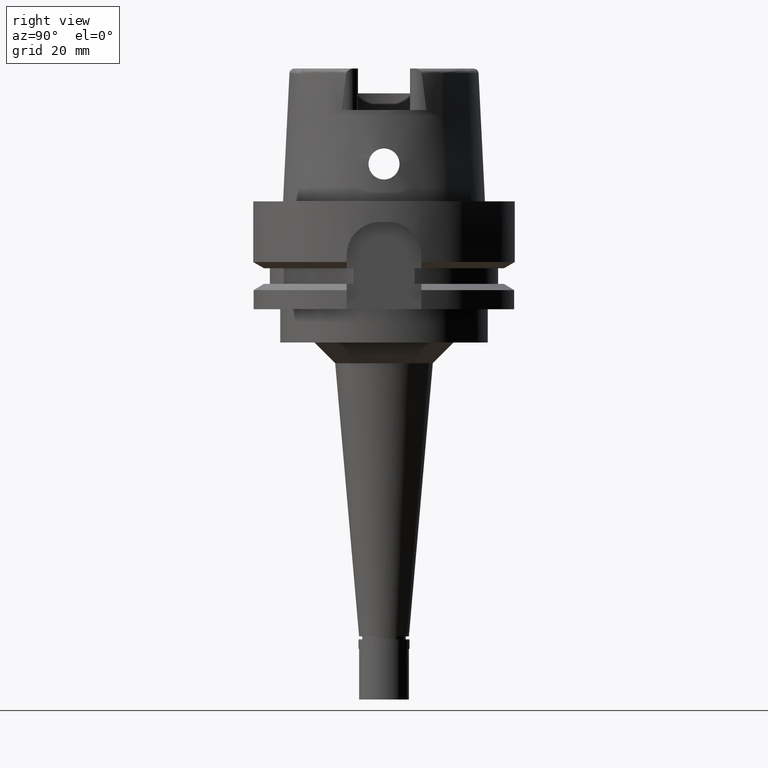
[diagram: clean part render]
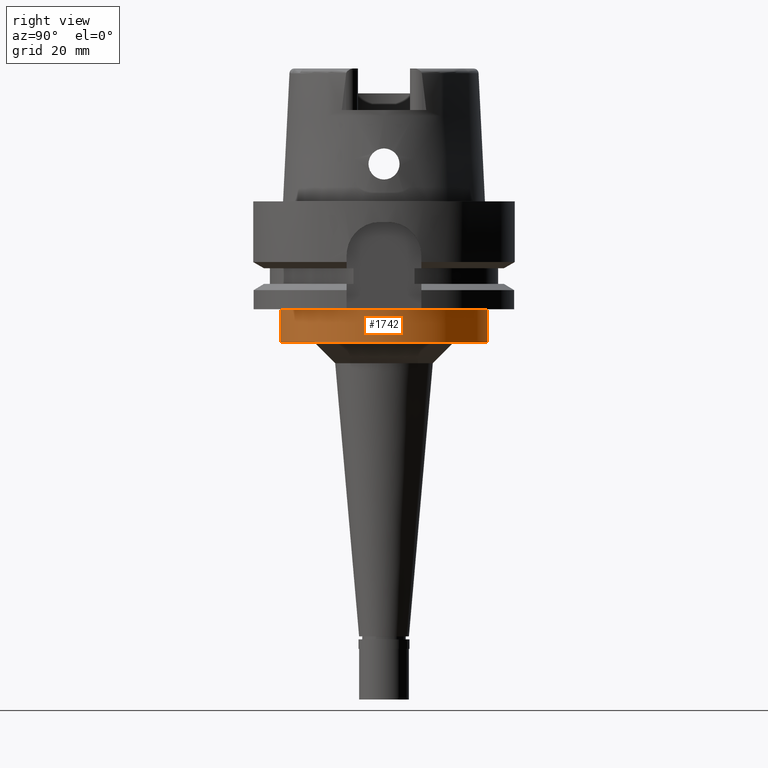
[diagram: same view with one face highlighted and labeled with its STEP entity id]
A machine part, right view. The second image highlights one B-rep face of the part: STEP entity #1742.
In plain terms, the highlighted cylindrical surface (partial cylindrical patch) has radius 25 mm, axis along (0, 0, -1).
Its self-contained STEP definition (entity closure, byte-faithful):
#31 = CARTESIAN_POINT ( 'NONE',  ( 0.0000000000000000000, 25.00000000000000000, -26.00000000000000000 ) ) ;
#280 = VERTEX_POINT ( 'NONE', #3898 ) ;
#387 = VECTOR ( 'NONE', #2126, 1000.000000000000000 ) ;
#432 = CARTESIAN_POINT ( 'NONE',  ( 0.0000000000000000000, 25.00000000000000000, -26.00000000000000000 ) ) ;
#555 = VECTOR ( 'NONE', #1315, 1000.000000000000000 ) ;
#647 = AXIS2_PLACEMENT_3D ( 'NONE', #5067, #2912, #2594 ) ;
#1315 = DIRECTION ( 'NONE',  ( 0.0000000000000000000, 0.0000000000000000000, -1.000000000000000000 ) ) ;
#1690 = FACE_OUTER_BOUND ( 'NONE', #3172, .T. ) ;
#1742 = ADVANCED_FACE ( 'NONE', ( #1690 ), #2961, .T. ) ;
#1745 = LINE ( 'NONE', #4403, #555 ) ;
#1937 = ORIENTED_EDGE ( 'NONE', *, *, #2546, .F. ) ;
#1953 = CARTESIAN_POINT ( 'NONE',  ( 0.0000000000000000000, -25.00000000000000000, -34.00000000000000000 ) ) ;
#2011 = EDGE_CURVE ( 'NONE', #280, #4290, #1745, .T. ) ;
#2024 = DIRECTION ( 'NONE',  ( 0.0000000000000000000, 0.0000000000000000000, 1.000000000000000000 ) ) ;
#2126 = DIRECTION ( 'NONE',  ( 0.0000000000000000000, 0.0000000000000000000, -1.000000000000000000 ) ) ;
#2502 = CARTESIAN_POINT ( 'NONE',  ( 0.0000000000000000000, 1.707157638010999903E-14, -34.00000000000000000 ) ) ;
#2546 = EDGE_CURVE ( 'NONE', #5157, #3912, #5439, .T. ) ;
#2594 = DIRECTION ( 'NONE',  ( 0.0000000000000000000, -1.000000000000000000, 0.0000000000000000000 ) ) ;
#2835 = EDGE_CURVE ( 'NONE', #5157, #280, #4208, .T. ) ;
#2873 = CARTESIAN_POINT ( 'NONE',  ( 0.0000000000000000000, 25.00000000000000000, -34.00000000000000000 ) ) ;
#2903 = DIRECTION ( 'NONE',  ( 0.0000000000000000000, -1.000000000000000000, 0.0000000000000000000 ) ) ;
#2912 = DIRECTION ( 'NONE',  ( 0.0000000000000000000, 0.0000000000000000000, -1.000000000000000000 ) ) ;
#2915 = ORIENTED_EDGE ( 'NONE', *, *, #3871, .T. ) ;
#2961 = CYLINDRICAL_SURFACE ( 'NONE', #647, 25.00000000000000000 ) ;
#3172 = EDGE_LOOP ( 'NONE', ( #4203, #3486, #2915, #1937 ) ) ;
#3243 = CARTESIAN_POINT ( 'NONE',  ( 0.0000000000000000000, 1.707157638010999903E-14, -26.00000000000000000 ) ) ;
#3486 = ORIENTED_EDGE ( 'NONE', *, *, #2011, .T. ) ;
#3694 = AXIS2_PLACEMENT_3D ( 'NONE', #3243, #4850, #5340 ) ;
#3871 = EDGE_CURVE ( 'NONE', #4290, #3912, #4576, .T. ) ;
#3898 = CARTESIAN_POINT ( 'NONE',  ( 0.0000000000000000000, -25.00000000000000000, -26.00000000000000000 ) ) ;
#3912 = VERTEX_POINT ( 'NONE', #2873 ) ;
#4203 = ORIENTED_EDGE ( 'NONE', *, *, #2835, .T. ) ;
#4208 = CIRCLE ( 'NONE', #3694, 25.00000000000000000 ) ;
#4290 = VERTEX_POINT ( 'NONE', #1953 ) ;
#4403 = CARTESIAN_POINT ( 'NONE',  ( 0.0000000000000000000, -25.00000000000000000, -26.00000000000000000 ) ) ;
#4576 = CIRCLE ( 'NONE', #5454, 25.00000000000000000 ) ;
#4850 = DIRECTION ( 'NONE',  ( 0.0000000000000000000, 0.0000000000000000000, -1.000000000000000000 ) ) ;
#5067 = CARTESIAN_POINT ( 'NONE',  ( 0.0000000000000000000, 1.707157638010999903E-14, 39.39999999999999858 ) ) ;
#5157 = VERTEX_POINT ( 'NONE', #31 ) ;
#5340 = DIRECTION ( 'NONE',  ( 0.0000000000000000000, 1.000000000000000000, 0.0000000000000000000 ) ) ;
#5439 = LINE ( 'NONE', #432, #387 ) ;
#5454 = AXIS2_PLACEMENT_3D ( 'NONE', #2502, #2024, #2903 ) ;